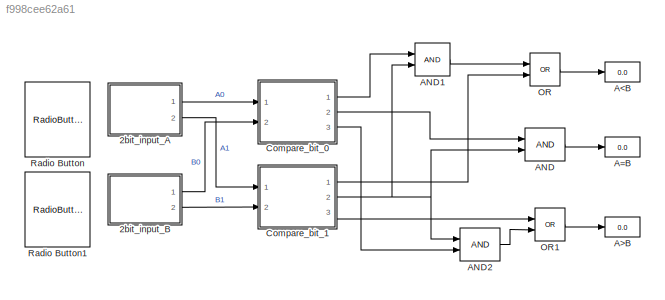
MODEL slx_f998cee62a61
KIND model
CONFIG AbsTol = auto
CONFIG EnableMultiTasking = off
CONFIG FixedStep = auto
CONFIG MaxStep = auto
CONFIG MinStep = auto
CONFIG RelTol = 1e-3
CONFIG SampleTimeConstraint = Unconstrained
CONFIG Solver = VariableStepAuto
CONFIG SolverName = VariableStepAuto
CONFIG StartTime = 0.0
CONFIG StopTime = inf
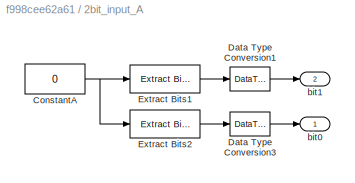
BLOCK [SubSystem] 2bit_input_A
  Ports = [0, 2]
  RequestExecContextInheritance = off
BLOCK [Constant] 2bit_input_A/ConstantA
  OutDataTypeStr = uint8
  OutMax = 3
  OutMin = 0
  Value = 0
BLOCK [DataTypeConversion] 2bit_input_A/Data Type Conversion1
  OutDataTypeStr = boolean
  RndMeth = Floor
  SaturateOnIntegerOverflow = off
BLOCK [DataTypeConversion] 2bit_input_A/Data Type Conversion3
  OutDataTypeStr = boolean
  RndMeth = Floor
  SaturateOnIntegerOverflow = off
BLOCK [Reference] 2bit_input_A/Extract Bits1  REF=simulink/Logic and Bit
Operations/Extract Bits
  Ports = [1, 1]
  SourceBlock = simulink/Logic and Bit\nOperations/Extract Bits
  SourceProductBaseCode = SL
  SourceProductName = Simulink
  SourceType = Extract Bits
BLOCK [Reference] 2bit_input_A/Extract Bits2  REF=simulink/Logic and Bit
Operations/Extract Bits
  Ports = [1, 1]
  SourceBlock = simulink/Logic and Bit\nOperations/Extract Bits
  SourceProductBaseCode = SL
  SourceProductName = Simulink
  SourceType = Extract Bits
BLOCK [Outport] 2bit_input_A/bit0
  IconDisplay = Port number
BLOCK [Outport] 2bit_input_A/bit1
  IconDisplay = Port number
  Port = 2
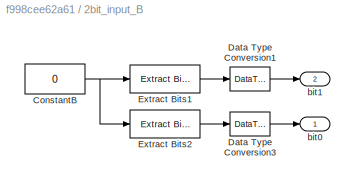
BLOCK [SubSystem] 2bit_input_B
  Ports = [0, 2]
  RequestExecContextInheritance = off
BLOCK [Constant] 2bit_input_B/ConstantB
  OutDataTypeStr = uint8
  OutMax = 3
  OutMin = 0
  Value = 0
BLOCK [DataTypeConversion] 2bit_input_B/Data Type Conversion1
  OutDataTypeStr = boolean
  RndMeth = Floor
  SaturateOnIntegerOverflow = off
BLOCK [DataTypeConversion] 2bit_input_B/Data Type Conversion3
  OutDataTypeStr = boolean
  RndMeth = Floor
  SaturateOnIntegerOverflow = off
BLOCK [Reference] 2bit_input_B/Extract Bits1  REF=simulink/Logic and Bit
Operations/Extract Bits
  Ports = [1, 1]
  SourceBlock = simulink/Logic and Bit\nOperations/Extract Bits
  SourceProductBaseCode = SL
  SourceProductName = Simulink
  SourceType = Extract Bits
BLOCK [Reference] 2bit_input_B/Extract Bits2  REF=simulink/Logic and Bit
Operations/Extract Bits
  Ports = [1, 1]
  SourceBlock = simulink/Logic and Bit\nOperations/Extract Bits
  SourceProductBaseCode = SL
  SourceProductName = Simulink
  SourceType = Extract Bits
BLOCK [Outport] 2bit_input_B/bit0
  IconDisplay = Port number
BLOCK [Outport] 2bit_input_B/bit1
  IconDisplay = Port number
  Port = 2
BLOCK [Display] A<B
  Decimation = 1
  Ports = [1]
BLOCK [Display] A=B
  Decimation = 1
  Ports = [1]
BLOCK [Display] A>B
  Decimation = 1
  Ports = [1]
BLOCK [Logic] AND
  AllPortsSameDT = off
  OutDataTypeStr = boolean
  Ports = [2, 1]
BLOCK [Logic] AND1
  AllPortsSameDT = off
  OutDataTypeStr = boolean
  Ports = [2, 1]
BLOCK [Logic] AND2
  AllPortsSameDT = off
  OutDataTypeStr = boolean
  Ports = [2, 1]
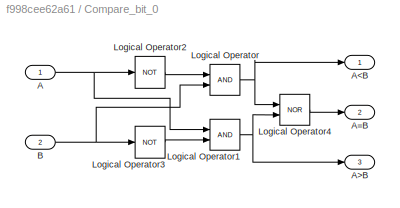
BLOCK [SubSystem] Compare_bit_0
  Ports = [2, 3]
  RequestExecContextInheritance = off
BLOCK [Inport] Compare_bit_0/A
  IconDisplay = Port number
BLOCK [Outport] Compare_bit_0/A<B
  IconDisplay = Port number
  VectorParamsAs1DForOutWhenUnconnected = off
BLOCK [Outport] Compare_bit_0/A=B
  IconDisplay = Port number
  Port = 2
  VectorParamsAs1DForOutWhenUnconnected = off
BLOCK [Outport] Compare_bit_0/A>B
  IconDisplay = Port number
  Port = 3
  VectorParamsAs1DForOutWhenUnconnected = off
BLOCK [Inport] Compare_bit_0/B
  IconDisplay = Port number
  Port = 2
BLOCK [Logic] Compare_bit_0/Logical Operator
  AllPortsSameDT = off
  OutDataTypeStr = boolean
  Ports = [2, 1]
BLOCK [Logic] Compare_bit_0/Logical Operator1
  AllPortsSameDT = off
  OutDataTypeStr = boolean
  Ports = [2, 1]
BLOCK [Logic] Compare_bit_0/Logical Operator2
  AllPortsSameDT = off
  Operator = NOT
  OutDataTypeStr = boolean
  Ports = [1, 1]
BLOCK [Logic] Compare_bit_0/Logical Operator3
  AllPortsSameDT = off
  Operator = NOT
  OutDataTypeStr = boolean
  Ports = [1, 1]
BLOCK [Logic] Compare_bit_0/Logical Operator4
  AllPortsSameDT = off
  Operator = NOR
  OutDataTypeStr = boolean
  Ports = [2, 1]
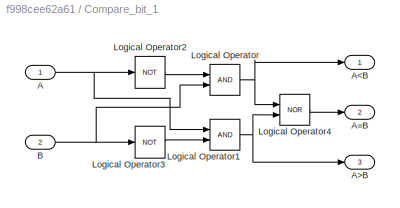
BLOCK [SubSystem] Compare_bit_1
  Ports = [2, 3]
  RequestExecContextInheritance = off
BLOCK [Inport] Compare_bit_1/A
  IconDisplay = Port number
BLOCK [Outport] Compare_bit_1/A<B
  IconDisplay = Port number
  VectorParamsAs1DForOutWhenUnconnected = off
BLOCK [Outport] Compare_bit_1/A=B
  IconDisplay = Port number
  Port = 2
  VectorParamsAs1DForOutWhenUnconnected = off
BLOCK [Outport] Compare_bit_1/A>B
  IconDisplay = Port number
  Port = 3
  VectorParamsAs1DForOutWhenUnconnected = off
BLOCK [Inport] Compare_bit_1/B
  IconDisplay = Port number
  Port = 2
BLOCK [Logic] Compare_bit_1/Logical Operator
  AllPortsSameDT = off
  OutDataTypeStr = boolean
  Ports = [2, 1]
BLOCK [Logic] Compare_bit_1/Logical Operator1
  AllPortsSameDT = off
  OutDataTypeStr = boolean
  Ports = [2, 1]
BLOCK [Logic] Compare_bit_1/Logical Operator2
  AllPortsSameDT = off
  Operator = NOT
  OutDataTypeStr = boolean
  Ports = [1, 1]
BLOCK [Logic] Compare_bit_1/Logical Operator3
  AllPortsSameDT = off
  Operator = NOT
  OutDataTypeStr = boolean
  Ports = [1, 1]
BLOCK [Logic] Compare_bit_1/Logical Operator4
  AllPortsSameDT = off
  Operator = NOR
  OutDataTypeStr = boolean
  Ports = [2, 1]
BLOCK [Logic] OR
  AllPortsSameDT = off
  Operator = OR
  OutDataTypeStr = boolean
  Ports = [2, 1]
BLOCK [Logic] OR1
  AllPortsSameDT = off
  Operator = OR
  OutDataTypeStr = boolean
  Ports = [2, 1]
BLOCK [RadioButtonGroup] Radio Button
  SelectedLabel = 0
BLOCK [RadioButtonGroup] Radio Button1
  SelectedLabel = 0
NET 2bit_input_A/ConstantA:1 -> 2bit_input_A/Extract Bits1:1, 2bit_input_A/Extract Bits2:1
LINE 2bit_input_A/Data Type Conversion1:1 -> 2bit_input_A/bit1:1
LINE 2bit_input_A/Data Type Conversion3:1 -> 2bit_input_A/bit0:1
LINE 2bit_input_A/Extract Bits1:1 -> 2bit_input_A/Data Type Conversion1:1
LINE 2bit_input_A/Extract Bits2:1 -> 2bit_input_A/Data Type Conversion3:1
LINE 2bit_input_A:1 -> Compare_bit_0:1
LINE 2bit_input_A:2 -> Compare_bit_1:1
NET 2bit_input_B/ConstantB:1 -> 2bit_input_B/Extract Bits1:1, 2bit_input_B/Extract Bits2:1
LINE 2bit_input_B/Data Type Conversion1:1 -> 2bit_input_B/bit1:1
LINE 2bit_input_B/Data Type Conversion3:1 -> 2bit_input_B/bit0:1
LINE 2bit_input_B/Extract Bits1:1 -> 2bit_input_B/Data Type Conversion1:1
LINE 2bit_input_B/Extract Bits2:1 -> 2bit_input_B/Data Type Conversion3:1
LINE 2bit_input_B:1 -> Compare_bit_0:2
LINE 2bit_input_B:2 -> Compare_bit_1:2
LINE AND1:1 -> OR:1
LINE AND2:1 -> OR1:2
LINE AND:1 -> A=B:1
NET Compare_bit_0/A:1 -> Compare_bit_0/Logical Operator1:1, Compare_bit_0/Logical Operator2:1
NET Compare_bit_0/B:1 -> Compare_bit_0/Logical Operator3:1, Compare_bit_0/Logical Operator:2
NET Compare_bit_0/Logical Operator1:1 -> Compare_bit_0/A>B:1, Compare_bit_0/Logical Operator4:2
LINE Compare_bit_0/Logical Operator2:1 -> Compare_bit_0/Logical Operator:1
LINE Compare_bit_0/Logical Operator3:1 -> Compare_bit_0/Logical Operator1:2
LINE Compare_bit_0/Logical Operator4:1 -> Compare_bit_0/A=B:1
NET Compare_bit_0/Logical Operator:1 -> Compare_bit_0/A<B:1, Compare_bit_0/Logical Operator4:1
LINE Compare_bit_0:1 -> AND1:1
LINE Compare_bit_0:2 -> AND:1
LINE Compare_bit_0:3 -> AND2:2
NET Compare_bit_1/A:1 -> Compare_bit_1/Logical Operator1:1, Compare_bit_1/Logical Operator2:1
NET Compare_bit_1/B:1 -> Compare_bit_1/Logical Operator3:1, Compare_bit_1/Logical Operator:2
NET Compare_bit_1/Logical Operator1:1 -> Compare_bit_1/A>B:1, Compare_bit_1/Logical Operator4:2
LINE Compare_bit_1/Logical Operator2:1 -> Compare_bit_1/Logical Operator:1
LINE Compare_bit_1/Logical Operator3:1 -> Compare_bit_1/Logical Operator1:2
LINE Compare_bit_1/Logical Operator4:1 -> Compare_bit_1/A=B:1
NET Compare_bit_1/Logical Operator:1 -> Compare_bit_1/A<B:1, Compare_bit_1/Logical Operator4:1
LINE Compare_bit_1:1 -> OR:2
NET Compare_bit_1:2 -> AND1:2, AND2:1, AND:2
LINE Compare_bit_1:3 -> OR1:1
LINE OR1:1 -> A>B:1
LINE OR:1 -> A<B:1
note: NET lines group one-source signal fan-out (src -> all destinations, sorted); 1:1 wires keep LINE
